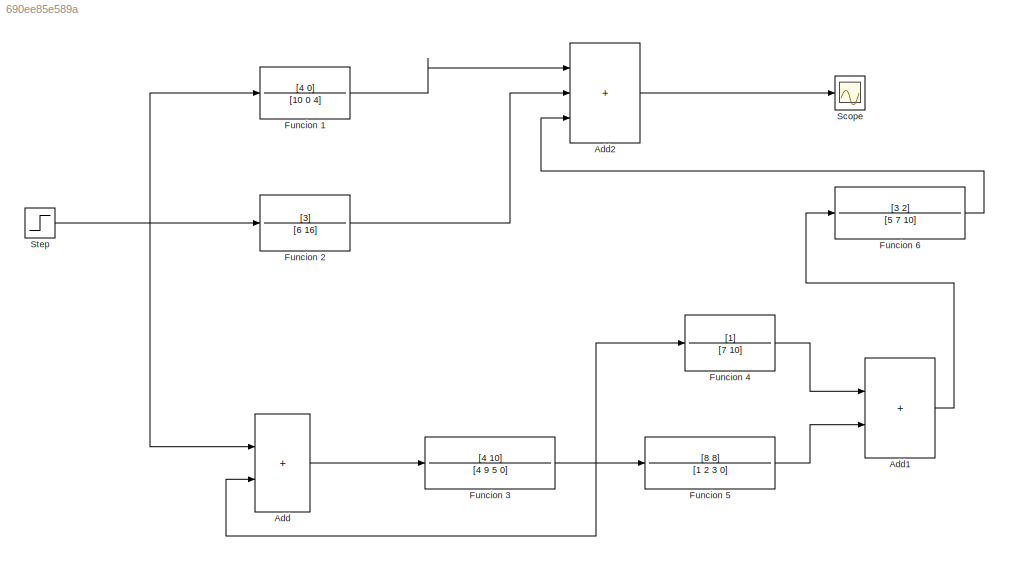
MODEL slx_690ee85e589a
KIND model
CONFIG AbsTol = auto
CONFIG EnableMultiTasking = off
CONFIG FixedStep = auto
CONFIG MaxStep = auto
CONFIG MinStep = auto
CONFIG RelTol = 1e-3
CONFIG SampleTimeConstraint = Unconstrained
CONFIG SolverName = VariableStepAuto
CONFIG StartTime = 0.0
CONFIG StopTime = 10.0
BLOCK [Sum] Add
  IconShape = rectangular
  Ports = [2, 1]
BLOCK [Sum] Add1
  IconShape = rectangular
  Ports = [2, 1]
BLOCK [Sum] Add2
  IconShape = rectangular
  Inputs = +++
  Ports = [3, 1]
BLOCK [TransferFcn] Funcion 1
  Denominator = [10 0 4]
  Numerator = [4 0]
BLOCK [TransferFcn] Funcion 2
  Denominator = [6 16]
  Numerator = [3]
BLOCK [TransferFcn] Funcion 3
  Denominator = [4 9 5 0]
  Numerator = [4 10]
BLOCK [TransferFcn] Funcion 4
  Denominator = [7 10]
BLOCK [TransferFcn] Funcion 5
  Denominator = [1 2 3 0]
  Numerator = [8 8]
BLOCK [TransferFcn] Funcion 6
  Denominator = [5 7 10]
  Numerator = [3 2]
BLOCK [Scope] Scope
  Floating = off
  NumInputPorts = 1
  Ports = [1]
  ScopeSpecificationString = Simulink.scopes.TimeScopeBlockCfg('CurrentConfiguration', extmgr.ConfigurationSet(extmgr.Configuration('Core','General UI',true),extmgr.Configuration('Core','Source UI',true),extmgr.Configuration('Sources','WiredSimulink',true),extmgr.Configuration('Visuals','Time Domain',true,'SerializedDisplays',{struct('MinYLimReal','-0.03656','MaxYLimReal','0.01577','YLabelReal','','MinYLimMag','0.00000','MaxY...<+1374ch>
BLOCK [Step] Step
  SampleTime = 0
  Time = 0
LINE Add1:1 -> Funcion 6:1
LINE Add2:1 -> Scope:1
LINE Add:1 -> Funcion 3:1
LINE Funcion 1:1 -> Add2:1
LINE Funcion 2:1 -> Add2:2
NET Funcion 3:1 -> Add:2, Funcion 4:1, Funcion 5:1
LINE Funcion 4:1 -> Add1:1
LINE Funcion 5:1 -> Add1:2
LINE Funcion 6:1 -> Add2:3
NET Step:1 -> Add:1, Funcion 1:1, Funcion 2:1
note: NET lines group one-source signal fan-out (src -> all destinations, sorted); 1:1 wires keep LINE
